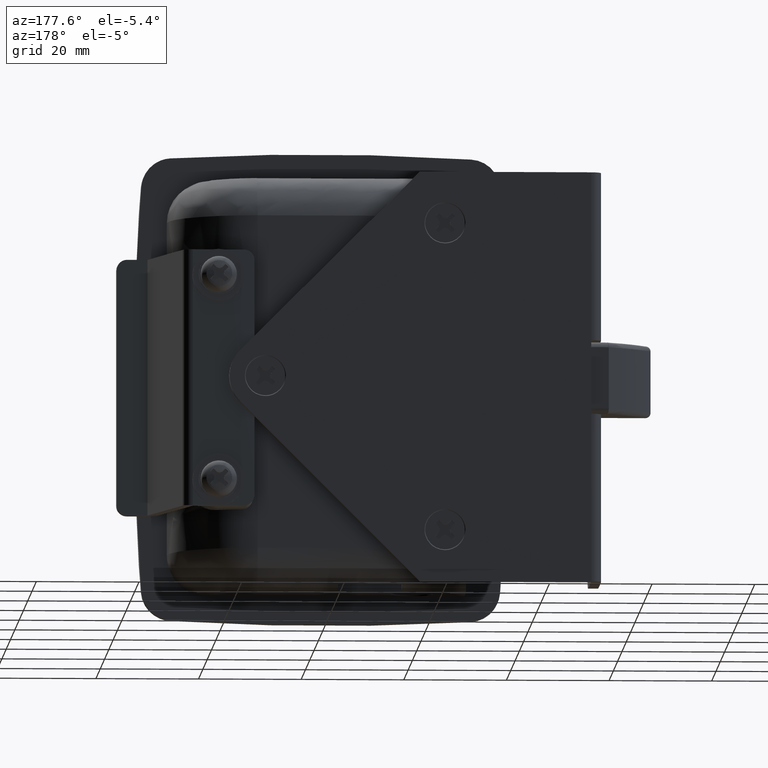
[diagram: clean part render]
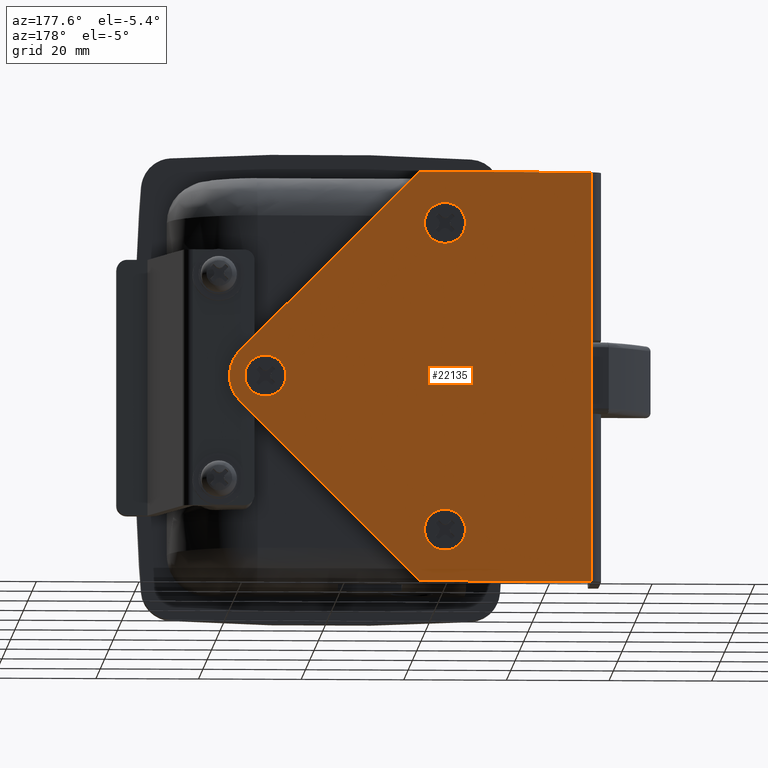
[diagram: same view with one face highlighted and labeled with its STEP entity id]
A machine part, auxiliary view. The second image highlights one B-rep face of the part: STEP entity #22135.
In plain terms, the highlighted face is a freeform B-spline surface patch.
Its self-contained STEP definition (entity closure, byte-faithful):
#17038=CARTESIAN_POINT('',(-20.133396561048780,-0.000000209282536,-32.789727531679688));
#17039=VERTEX_POINT('',#17038);
#17045=CARTESIAN_POINT('',(-23.0,0.0,-33.999999999999893));
#17046=VERTEX_POINT('',#17045);
#17047=CARTESIAN_POINT('',(-23.0,0.0,-33.999999999999893));
#17048=CARTESIAN_POINT('',(-22.633780975202932,-0.000000026736606,-34.000134656862713));
#17049=CARTESIAN_POINT('',(-21.934742328667760,-0.000000077771423,-33.903313448610263));
#17050=CARTESIAN_POINT('',(-20.945614795054869,-0.000000149984801,-33.485745652512200));
#17051=CARTESIAN_POINT('',(-20.388728202095241,-0.000000190641502,-33.052250781817527));
#17052=CARTESIAN_POINT('',(-20.133396561048780,-0.000000209282536,-32.789727531679688));
#17053=B_SPLINE_CURVE_WITH_KNOTS('',3,(#17047,#17048,#17049,#17050,#17051,#17052),.UNSPECIFIED.,.F.,.U.,(4,1,1,4),(0.000000034643123,1.098618011362662,2.097356336454394,3.195974313190774),.UNSPECIFIED.);
#17054=EDGE_CURVE('',#17046,#17039,#17053,.T.);
#17056=CARTESIAN_POINT('',(-26.999999999999542,0.0,-30.000001674878789));
#17057=VERTEX_POINT('',#17056);
#17058=CARTESIAN_POINT('',(-26.999999999999542,0.0,-30.000001674878789));
#17059=CARTESIAN_POINT('',(-27.000024728583899,0.0,-30.261797683425652));
#17060=CARTESIAN_POINT('',(-26.943611229735790,0.0,-30.834487198125341));
#17061=CARTESIAN_POINT('',(-26.700202563353290,0.0,-31.586832474314331));
#17062=CARTESIAN_POINT('',(-26.323990869831750,0.0,-32.260400895999489));
#17063=CARTESIAN_POINT('',(-25.806770434520171,0.0,-32.898784806078467));
#17064=CARTESIAN_POINT('',(-25.103840865028019,0.0,-33.447299322060907));
#17065=CARTESIAN_POINT('',(-24.128879488248199,0.0,-33.886638837275953));
#17066=CARTESIAN_POINT('',(-23.425454361718540,0.0,-34.000243861569288));
#17067=CARTESIAN_POINT('',(-23.0,0.0,-33.999999999999893));
#17068=B_SPLINE_CURVE_WITH_KNOTS('',3,(#17058,#17059,#17060,#17061,#17062,#17063,#17064,#17065,#17066,#17067),.UNSPECIFIED.,.F.,.U.,(4,1,1,1,1,1,1,4),(0.000000132146021,0.785394051413708,1.718071057366981,2.356230689143212,3.092563692529988,4.172443041750979,5.006946267069628,6.283223787515740),.UNSPECIFIED.);
#17069=EDGE_CURVE('',#17057,#17046,#17068,.T.);
#17071=CARTESIAN_POINT('',(-23.0,0.0,-26.000000000000110));
#17072=VERTEX_POINT('',#17071);
#17073=CARTESIAN_POINT('',(-23.0,0.0,-26.000000000000110));
#17074=CARTESIAN_POINT('',(-23.490952057342412,0.0,-25.999575603539679));
#17075=CARTESIAN_POINT('',(-24.161502007991970,0.0,-26.125031804835810));
#17076=CARTESIAN_POINT('',(-24.979217598787230,0.0,-26.505848861840899));
#17077=CARTESIAN_POINT('',(-25.511775213628589,0.0,-26.861652609488051));
#17078=CARTESIAN_POINT('',(-26.035117905222819,0.0,-27.359919016777820));
#17079=CARTESIAN_POINT('',(-26.507098501874111,0.0,-28.012814334727778));
#17080=CARTESIAN_POINT('',(-26.895526051689490,0.0,-28.903795342530959));
#17081=CARTESIAN_POINT('',(-27.000174910826921,0.0,-29.607286227373791));
#17082=CARTESIAN_POINT('',(-26.999999999999542,0.0,-30.000001674878789));
#17083=B_SPLINE_CURVE_WITH_KNOTS('',3,(#17073,#17074,#17075,#17076,#17077,#17078,#17079,#17080,#17081,#17082),.UNSPECIFIED.,.F.,.U.,(4,1,1,1,1,1,1,4),(0.000000131568616,1.472630033103272,2.012608711080329,2.699851140114794,3.387044032583851,4.172444296669898,5.105124155636843,6.283225675506312),.UNSPECIFIED.);
#17084=EDGE_CURVE('',#17072,#17057,#17083,.T.);
#17086=CARTESIAN_POINT('',(-20.050890191453622,0.000000208563140,-27.297638746827079));
#17087=VERTEX_POINT('',#17086);
#17088=CARTESIAN_POINT('',(-20.050890191453622,0.000000208563140,-27.297638746827079));
#17089=CARTESIAN_POINT('',(-20.307488474997449,0.000000190416327,-27.017364588471828));
#17090=CARTESIAN_POINT('',(-20.806955028029510,0.000000155093698,-26.608426929014460));
#17091=CARTESIAN_POINT('',(-21.808475122309279,0.000000084265485,-26.128341279102091));
#17092=CARTESIAN_POINT('',(-22.533613819887709,0.000000032983162,-25.999670246843898));
#17093=CARTESIAN_POINT('',(-23.0,0.0,-26.000000000000110));
#17094=B_SPLINE_CURVE_WITH_KNOTS('',3,(#17088,#17089,#17090,#17091,#17092,#17093),.UNSPECIFIED.,.F.,.U.,(4,1,1,4),(0.000000036768252,1.139934626742506,1.917141666513055,3.316149021392207),.UNSPECIFIED.);
#17095=EDGE_CURVE('',#17087,#17072,#17094,.T.);
#17179=CARTESIAN_POINT('',(-19.000000000000458,0.0,-29.999998325121240));
#17180=VERTEX_POINT('',#17179);
#17181=CARTESIAN_POINT('',(-19.000000000000458,0.0,-29.999998325121240));
#17182=CARTESIAN_POINT('',(-18.999780002255701,0.000000031012333,-29.598170422243260));
#17183=CARTESIAN_POINT('',(-19.089289602410549,0.000000076321906,-29.011092708263309));
#17184=CARTESIAN_POINT('',(-19.448582968020631,0.000000147638473,-28.087041569395218));
#17185=CARTESIAN_POINT('',(-19.779286045953832,0.000000185708696,-27.593764480891320));
#17186=CARTESIAN_POINT('',(-20.050890191453622,0.000000208563140,-27.297638746827079));
#17187=B_SPLINE_CURVE_WITH_KNOTS('',3,(#17181,#17182,#17183,#17184,#17185,#17186),.UNSPECIFIED.,.F.,.U.,(4,1,1,4),(0.000000030477780,1.205382613887133,1.761692308088288,2.967074891567413),.UNSPECIFIED.);
#17188=EDGE_CURVE('',#17180,#17087,#17187,.T.);
#17190=CARTESIAN_POINT('',(-20.133396561048780,-0.000000209282536,-32.789727531679688));
#17191=CARTESIAN_POINT('',(-19.852887368179921,-0.000000187679552,-32.501760400519309));
#17192=CARTESIAN_POINT('',(-19.417842827969270,-0.000000142026830,-31.893211068305590));
#17193=CARTESIAN_POINT('',(-19.068298982417410,-0.000000068756353,-30.916518080305089));
#17194=CARTESIAN_POINT('',(-18.999963244763840,-0.000000021712663,-30.289427348988969));
#17195=CARTESIAN_POINT('',(-19.000000000000458,0.0,-29.999998325121240));
#17196=B_SPLINE_CURVE_WITH_KNOTS('',3,(#17190,#17191,#17192,#17193,#17194,#17195),.UNSPECIFIED.,.F.,.U.,(4,1,1,4),(0.000000032947745,1.205960320813801,2.218960652298489,3.087251635470290),.UNSPECIFIED.);
#17197=EDGE_CURVE('',#17039,#17180,#17196,.T.);
#17443=CARTESIAN_POINT('',(-20.133396561048780,-0.000000209282537,27.210472468320312));
#17444=VERTEX_POINT('',#17443);
#17450=CARTESIAN_POINT('',(-23.0,0.0,26.000200000000120));
#17451=VERTEX_POINT('',#17450);
#17452=CARTESIAN_POINT('',(-23.0,0.0,26.000200000000120));
#17453=CARTESIAN_POINT('',(-22.667089374652090,-0.000000024304855,26.000136570189529));
#17454=CARTESIAN_POINT('',(-21.967963400484660,-0.000000075346047,26.087879900586579));
#17455=CARTESIAN_POINT('',(-20.972150655673062,-0.000000148047494,26.493815870226030));
#17456=CARTESIAN_POINT('',(-20.388712282279389,-0.000000190642664,26.947933558165978));
#17457=CARTESIAN_POINT('',(-20.133396561048780,-0.000000209282537,27.210472468320312));
#17458=B_SPLINE_CURVE_WITH_KNOTS('',3,(#17452,#17453,#17454,#17455,#17456,#17457),.UNSPECIFIED.,.F.,.U.,(4,1,1,4),(0.000000034646428,0.998744306119109,2.097356336455277,3.195974313190781),.UNSPECIFIED.);
#17459=EDGE_CURVE('',#17451,#17444,#17458,.T.);
#17461=CARTESIAN_POINT('',(-26.999999999999542,0.0,30.000198325121222));
#17462=VERTEX_POINT('',#17461);
#17463=CARTESIAN_POINT('',(-26.999999999999542,0.0,30.000198325121222));
#17464=CARTESIAN_POINT('',(-27.000035373658118,0.0,29.738399315582200));
#17465=CARTESIAN_POINT('',(-26.950007126625419,0.0,29.231183189216441));
#17466=CARTESIAN_POINT('',(-26.702437332211790,0.0,28.396197267343162));
#17467=CARTESIAN_POINT('',(-26.238539527097039,0.0,27.577279716624510));
#17468=CARTESIAN_POINT('',(-25.582217390943271,0.0,26.904751962434720));
#17469=CARTESIAN_POINT('',(-24.964856007866061,0.0,26.497793303264491));
#17470=CARTESIAN_POINT('',(-24.145135535212290,0.0,26.122197367290649));
#17471=CARTESIAN_POINT('',(-23.490959377393938,0.0,25.999742996236112));
#17472=CARTESIAN_POINT('',(-23.0,0.0,26.000200000000120));
#17473=B_SPLINE_CURVE_WITH_KNOTS('',3,(#17463,#17464,#17465,#17466,#17467,#17468,#17469,#17470,#17471,#17472),.UNSPECIFIED.,.F.,.U.,(4,1,1,1,1,1,1,4),(0.000000132165360,0.785394051431394,1.521717543524932,2.601676395562618,3.583375324102371,4.319713128960666,4.810595686078033,6.283223787515631),.UNSPECIFIED.);
#17474=EDGE_CURVE('',#17462,#17451,#17473,.T.);
#17476=CARTESIAN_POINT('',(-23.0,0.0,34.000199999999893));
#17477=VERTEX_POINT('',#17476);
#17478=CARTESIAN_POINT('',(-23.0,0.0,34.000199999999893));
#17479=CARTESIAN_POINT('',(-23.327251755743351,0.0,34.000287674474897));
#17480=CARTESIAN_POINT('',(-23.899898456862200,0.0,33.929511929630557));
#17481=CARTESIAN_POINT('',(-24.628626718255351,0.0,33.673783780366961));
#17482=CARTESIAN_POINT('',(-25.289827282674889,0.0,33.309889455494620));
#17483=CARTESIAN_POINT('',(-25.948734426605849,0.0,32.762465408077823));
#17484=CARTESIAN_POINT('',(-26.514030698785572,0.0,31.990336809223670));
#17485=CARTESIAN_POINT('',(-26.904600012528750,0.0,31.047332459687130));
#17486=CARTESIAN_POINT('',(-27.000143495566629,0.0,30.376542756990521));
#17487=CARTESIAN_POINT('',(-26.999999999999542,0.0,30.000198325121222));
#17488=B_SPLINE_CURVE_WITH_KNOTS('',3,(#17478,#17479,#17480,#17481,#17482,#17483,#17484,#17485,#17486,#17487),.UNSPECIFIED.,.F.,.U.,(4,1,1,1,1,1,1,4),(0.000000131571235,0.981738193292141,1.718071573033341,2.307123194279674,3.239764389510312,4.270618324295783,5.154220258974679,6.283225675506311),.UNSPECIFIED.);
#17489=EDGE_CURVE('',#17477,#17462,#17488,.T.);
#17491=CARTESIAN_POINT('',(-20.050890191453622,0.000000208563138,32.702561253172917));
#17492=VERTEX_POINT('',#17491);
#17493=CARTESIAN_POINT('',(-20.050890191453622,0.000000208563138,32.702561253172917));
#17494=CARTESIAN_POINT('',(-20.237564503028189,0.000000195361398,32.906320779078698));
#17495=CARTESIAN_POINT('',(-20.705300225588299,0.000000162282796,33.321054909686943));
#17496=CARTESIAN_POINT('',(-21.687592210163530,0.000000092814410,33.847939594457017));
#17497=CARTESIAN_POINT('',(-22.516336596385820,0.000000034205019,34.000622039936303));
#17498=CARTESIAN_POINT('',(-23.0,0.0,34.000199999999893));
#17499=B_SPLINE_CURVE_WITH_KNOTS('',3,(#17493,#17494,#17495,#17496,#17497,#17498),.UNSPECIFIED.,.F.,.U.,(4,1,1,4),(0.000000036761122,0.829037970805224,1.865317209833145,3.316149021392266),.UNSPECIFIED.);
#17500=EDGE_CURVE('',#17492,#17477,#17499,.T.);
#17583=CARTESIAN_POINT('',(-19.000000000000469,0.0,30.000201674878749));
#17584=VERTEX_POINT('',#17583);
#17585=CARTESIAN_POINT('',(-19.000000000000469,0.0,30.000201674878749));
#17586=CARTESIAN_POINT('',(-18.999929786310741,0.000000023853951,30.309278172536072));
#17587=CARTESIAN_POINT('',(-19.068417902298670,0.000000069172407,30.896470990602630));
#17588=CARTESIAN_POINT('',(-19.396328389330549,0.000000141627056,31.835268323985879));
#17589=CARTESIAN_POINT('',(-19.779288817607888,0.000000185709247,32.406442687153998));
#17590=CARTESIAN_POINT('',(-20.050890191453622,0.000000208563138,32.702561253172917));
#17591=B_SPLINE_CURVE_WITH_KNOTS('',3,(#17585,#17586,#17587,#17588,#17589,#17590),.UNSPECIFIED.,.F.,.U.,(4,1,1,4),(0.000000030478426,0.927215975681670,1.761692308088694,2.967074891567404),.UNSPECIFIED.);
#17592=EDGE_CURVE('',#17584,#17492,#17591,.T.);
#17594=CARTESIAN_POINT('',(-20.133396561048780,-0.000000209282537,27.210472468320312));
#17595=CARTESIAN_POINT('',(-19.953947180174492,-0.000000195452557,27.394825684802012));
#17596=CARTESIAN_POINT('',(-19.620709125790789,-0.000000164237540,27.810920875109701));
#17597=CARTESIAN_POINT('',(-19.301996561879331,-0.000000117901258,28.428581989099211));
#17598=CARTESIAN_POINT('',(-19.063519301483471,-0.000000062722322,29.164115336623709));
#17599=CARTESIAN_POINT('',(-18.999903631553579,-0.000000025332491,29.662520469460478));
#17600=CARTESIAN_POINT('',(-19.000000000000469,0.0,30.000201674878749));
#17601=B_SPLINE_CURVE_WITH_KNOTS('',3,(#17594,#17595,#17596,#17597,#17598,#17599,#17600),.UNSPECIFIED.,.F.,.U.,(4,1,1,1,4),(0.000000032947541,0.771812903240421,1.591843750767028,2.074243116915188,3.087251635470289),.UNSPECIFIED.);
#17602=EDGE_CURVE('',#17444,#17584,#17601,.T.);
#17849=CARTESIAN_POINT('',(14.866603438951220,-0.000000209282537,-2.789727531679689));
#17850=VERTEX_POINT('',#17849);
#17856=CARTESIAN_POINT('',(12.0,0.0,-3.999999999999890));
#17857=VERTEX_POINT('',#17856);
#17858=CARTESIAN_POINT('',(12.0,0.0,-3.999999999999890));
#17859=CARTESIAN_POINT('',(12.416174527571590,-0.000000030383715,-4.000225881305692));
#17860=CARTESIAN_POINT('',(13.098481333707250,-0.000000080196988,-3.892475019790310));
#17861=CARTESIAN_POINT('',(14.079563818455361,-0.000000151823020,-3.463755419902011));
#17862=CARTESIAN_POINT('',(14.599685771084310,-0.000000189795640,-3.064213985921363));
#17863=CARTESIAN_POINT('',(14.866603438951220,-0.000000209282537,-2.789727531679689));
#17864=B_SPLINE_CURVE_WITH_KNOTS('',3,(#17858,#17859,#17860,#17861,#17862,#17863),.UNSPECIFIED.,.F.,.U.,(4,1,1,4),(0.000000034645903,1.248434203076903,2.047412353012588,3.195974313190774),.UNSPECIFIED.);
#17865=EDGE_CURVE('',#17857,#17850,#17864,.T.);
#17867=CARTESIAN_POINT('',(8.000000000000464,0.0,-0.000001674878781));
#17868=VERTEX_POINT('',#17867);
#17869=CARTESIAN_POINT('',(8.000000000000464,0.0,-0.000001674878781));
#17870=CARTESIAN_POINT('',(7.999584859518224,0.0,-0.490925224358474));
#17871=CARTESIAN_POINT('',(8.158651083748962,0.0,-1.341488472014273));
#17872=CARTESIAN_POINT('',(8.684223330694605,0.0,-2.296165229083357));
#17873=CARTESIAN_POINT('',(9.206483920666182,0.0,-2.886655474678789));
#17874=CARTESIAN_POINT('',(9.713780198861253,0.0,-3.302991226042930));
#17875=CARTESIAN_POINT('',(10.323894549615931,0.0,-3.658626748965719));
#17876=CARTESIAN_POINT('',(11.100090122991160,0.0,-3.930978895498558));
#17877=CARTESIAN_POINT('',(11.689108541809530,0.0,-4.000067211278950));
#17878=CARTESIAN_POINT('',(12.0,0.0,-3.999999999999890));
#17879=B_SPLINE_CURVE_WITH_KNOTS('',3,(#17869,#17870,#17871,#17872,#17873,#17874,#17875,#17876,#17877,#17878),.UNSPECIFIED.,.F.,.U.,(4,1,1,1,1,1,1,4),(0.000000132159848,1.472629591085390,2.552568305523895,3.239763413772240,3.828824417803785,4.516063509617237,5.350562324962835,6.283223787515684),.UNSPECIFIED.);
#17880=EDGE_CURVE('',#17868,#17857,#17879,.T.);
#17882=CARTESIAN_POINT('',(12.0,0.0,3.999999999999890));
#17883=VERTEX_POINT('',#17882);
#17884=CARTESIAN_POINT('',(12.0,0.0,3.999999999999890));
#17885=CARTESIAN_POINT('',(11.623651491323120,0.0,4.000126579014064));
#17886=CARTESIAN_POINT('',(11.001956042083551,0.0,3.911596535205616));
#17887=CARTESIAN_POINT('',(10.237250890631250,0.0,3.611139077806684));
#17888=CARTESIAN_POINT('',(9.632134476552603,0.0,3.248443898316984));
#17889=CARTESIAN_POINT('',(9.022051521213360,0.0,2.722289264402703));
#17890=CARTESIAN_POINT('',(8.437146632582985,0.0,1.923620164526393));
#17891=CARTESIAN_POINT('',(8.074329952563952,0.0,0.965388726341853));
#17892=CARTESIAN_POINT('',(7.999969185756487,0.0,0.294514062788636));
#17893=CARTESIAN_POINT('',(8.000000000000464,0.0,-0.000001674878781));
#17894=B_SPLINE_CURVE_WITH_KNOTS('',3,(#17884,#17885,#17886,#17887,#17888,#17889,#17890,#17891,#17892,#17893),.UNSPECIFIED.,.F.,.U.,(4,1,1,1,1,1,1,4),(0.000000131579335,1.129010650844709,1.865338077929333,2.454403737095658,3.239764389511992,4.270618324296796,5.399666949536954,6.283225675506252),.UNSPECIFIED.);
#17895=EDGE_CURVE('',#17883,#17868,#17894,.T.);
#17897=CARTESIAN_POINT('',(14.949109808546380,0.000000208563138,2.702361253172921));
#17898=VERTEX_POINT('',#17897);
#17899=CARTESIAN_POINT('',(14.949109808546380,0.000000208563138,2.702361253172921));
#17900=CARTESIAN_POINT('',(14.634269083863710,0.000000186297378,3.046413058232078));
#17901=CARTESIAN_POINT('',(13.979898228252150,0.000000140019807,3.547546350158291));
#17902=CARTESIAN_POINT('',(12.932650060224081,0.000000065957674,3.929357244199613));
#17903=CARTESIAN_POINT('',(12.293614821107880,0.000000020764648,4.000039830369911));
#17904=CARTESIAN_POINT('',(12.0,0.0,3.999999999999890));
#17905=B_SPLINE_CURVE_WITH_KNOTS('',3,(#17899,#17900,#17901,#17902,#17903,#17904),.UNSPECIFIED.,.F.,.U.,(4,1,1,4),(0.000000036766828,1.399010705399002,2.435295831153156,3.316149021392231),.UNSPECIFIED.);
#17906=EDGE_CURVE('',#17898,#17883,#17905,.T.);
#17989=CARTESIAN_POINT('',(15.999999999999540,0.0,0.000001674878758));
#17990=VERTEX_POINT('',#17989);
#17991=CARTESIAN_POINT('',(15.999999999999540,0.0,0.000001674878758));
#17992=CARTESIAN_POINT('',(16.000103889155561,0.000000026239621,0.339989376231566));
#17993=CARTESIAN_POINT('',(15.924646942606531,0.000000071556336,0.927159637088349));
#17994=CARTESIAN_POINT('',(15.586248609881441,0.000000143631028,1.861033861535925));
#17995=CARTESIAN_POINT('',(15.220702295152050,0.000000185708405,2.406231783585567));
#17996=CARTESIAN_POINT('',(14.949109808546380,0.000000208563138,2.702361253172921));
#17997=B_SPLINE_CURVE_WITH_KNOTS('',3,(#17991,#17992,#17993,#17994,#17995,#17996),.UNSPECIFIED.,.F.,.U.,(4,1,1,4),(0.000000030477955,1.019939002010793,1.761692308088498,2.967074891567395),.UNSPECIFIED.);
#17998=EDGE_CURVE('',#17990,#17898,#17997,.T.);
#18000=CARTESIAN_POINT('',(14.866603438951220,-0.000000209282537,-2.789727531679689));
#18001=CARTESIAN_POINT('',(15.214641126955680,-0.000000182504397,-2.432775731869671));
#18002=CARTESIAN_POINT('',(15.665599033042120,-0.000000131306310,-1.750306874315685));
#18003=CARTESIAN_POINT('',(15.955125868950381,-0.000000056693326,-0.755718347751849));
#18004=CARTESIAN_POINT('',(16.000006993309540,-0.000000016887404,-0.225106820178740));
#18005=CARTESIAN_POINT('',(15.999999999999540,0.0,0.000001674878758));
#18006=B_SPLINE_CURVE_WITH_KNOTS('',3,(#18000,#18001,#18002,#18003,#18004,#18005),.UNSPECIFIED.,.F.,.U.,(4,1,1,4),(0.000000032949107,1.495407917603691,2.411916817361766,3.087251635470281),.UNSPECIFIED.);
#18007=EDGE_CURVE('',#17850,#17990,#18006,.T.);
#19347=CARTESIAN_POINT('',(-51.500000000000000,0.0,7.200199999999900));
#19348=VERTEX_POINT('',#19347);
#19354=CARTESIAN_POINT('',(-51.500000000000000,0.0,-7.200000000000000));
#19355=VERTEX_POINT('',#19354);
#19356=CARTESIAN_POINT('',(-51.500000000000000,0.0,7.200199999999900));
#19357=CARTESIAN_POINT('',(-51.500000000000000,0.0,-7.200000000000000));
#19358=QUASI_UNIFORM_CURVE('',1,(#19356,#19357),.UNSPECIFIED.,.F.,.U.);
#19359=EDGE_CURVE('',#19348,#19355,#19358,.T.);
#19494=CARTESIAN_POINT('',(-51.500000000000000,0.0,-40.0));
#19495=VERTEX_POINT('',#19494);
#19496=CARTESIAN_POINT('',(-51.500000000000000,0.0,-40.0));
#19497=CARTESIAN_POINT('',(-51.500000000000000,0.0,-7.200000000000000));
#19498=QUASI_UNIFORM_CURVE('',1,(#19496,#19497),.UNSPECIFIED.,.F.,.U.);
#19499=EDGE_CURVE('',#19495,#19355,#19498,.T.);
#21875=CARTESIAN_POINT('',(-18.100000000000001,0.0,-40.0));
#21876=VERTEX_POINT('',#21875);
#21877=CARTESIAN_POINT('',(-18.100000000000001,0.0,-40.0));
#21878=CARTESIAN_POINT('',(-51.500000000000000,0.0,-40.0));
#21879=QUASI_UNIFORM_CURVE('',1,(#21877,#21878),.UNSPECIFIED.,.F.,.U.);
#21880=EDGE_CURVE('',#21876,#19495,#21879,.T.);
#21902=CARTESIAN_POINT('',(-51.500000000000000,0.0,40.000200000000000));
#21903=VERTEX_POINT('',#21902);
#21904=CARTESIAN_POINT('',(-18.100000000000001,0.0,40.000200000000000));
#21905=VERTEX_POINT('',#21904);
#21906=CARTESIAN_POINT('',(-51.500000000000000,0.0,40.000200000000000));
#21907=CARTESIAN_POINT('',(-18.100000000000001,0.0,40.000200000000000));
#21908=QUASI_UNIFORM_CURVE('',1,(#21906,#21907),.UNSPECIFIED.,.F.,.U.);
#21909=EDGE_CURVE('',#21903,#21905,#21908,.T.);
#21987=CARTESIAN_POINT('',(16.949985963325251,0.0,-4.949714036794970));
#21988=VERTEX_POINT('',#21987);
#21996=CARTESIAN_POINT('',(16.949985963325251,0.0,-4.949714036794970));
#21997=CARTESIAN_POINT('',(-18.100000000000001,0.0,-40.0));
#21998=QUASI_UNIFORM_CURVE('',1,(#21996,#21997),.UNSPECIFIED.,.F.,.U.);
#21999=EDGE_CURVE('',#21988,#21876,#21998,.T.);
#22020=CARTESIAN_POINT('',(16.949999999999999,0.0,4.949800000000000));
#22021=VERTEX_POINT('',#22020);
#22022=CARTESIAN_POINT('',(16.949985963325251,0.0,-4.949714036794970));
#22023=CARTESIAN_POINT('',(17.314523824299030,0.0,-4.585332530889240));
#22024=CARTESIAN_POINT('',(17.818426351050320,0.0,-3.955441179723611));
#22025=CARTESIAN_POINT('',(18.385580262832740,0.0,-2.924983469686994));
#22026=CARTESIAN_POINT('',(18.802789137577740,0.0,-1.823589386691812));
#22027=CARTESIAN_POINT('',(19.034301769211741,0.0,-0.489494441008981));
#22028=CARTESIAN_POINT('',(18.984467195568961,0.0,0.861905608561247));
#22029=CARTESIAN_POINT('',(18.733434641197370,0.0,2.012595111050343));
#22030=CARTESIAN_POINT('',(18.320123728793121,0.0,3.084150988286848));
#22031=CARTESIAN_POINT('',(17.734832026174551,0.0,4.074337915067562));
#22032=CARTESIAN_POINT('',(17.213227966950271,0.0,4.686594810979856));
#22033=CARTESIAN_POINT('',(16.949999999999999,0.0,4.949800000000000));
#22034=B_SPLINE_CURVE_WITH_KNOTS('',3,(#22022,#22023,#22024,#22025,#22026,#22027,#22028,#22029,#22030,#22031,#22032,#22033),.UNSPECIFIED.,.F.,.U.,(4,1,1,1,1,1,1,1,1,4),(0.000000106027558,1.546247696267416,2.405305667774647,3.522054191558498,5.068324403741798,6.442750973540969,7.559517255950171,8.590379023990757,9.878936741772325,10.995677809973801),.UNSPECIFIED.);
#22035=EDGE_CURVE('',#21988,#22021,#22034,.T.);
#22053=CARTESIAN_POINT('',(-18.100000000000001,0.0,40.000200000000000));
#22054=CARTESIAN_POINT('',(16.949999999999999,0.0,4.949800000000000));
#22055=QUASI_UNIFORM_CURVE('',1,(#22053,#22054),.UNSPECIFIED.,.F.,.U.);
#22056=EDGE_CURVE('',#21905,#22021,#22055,.T.);
#22092=CARTESIAN_POINT('',(-55.021488202647397,0.0,43.996208332974817));
#22093=CARTESIAN_POINT('',(22.521757146476951,0.0,43.996208332974817));
#22094=CARTESIAN_POINT('',(-55.021488202647397,0.0,-43.996011909262442));
#22095=CARTESIAN_POINT('',(22.521757146476951,0.0,-43.996011909262442));
#22096=B_SPLINE_SURFACE_WITH_KNOTS('',1,1,((#22092,#22094),(#22093,#22095)),.UNSPECIFIED.,.F.,.F.,.U.,(2,2),(2,2),(0.0,77.543245349124362),(0.0,87.992220242237266),.UNSPECIFIED.);
#22097=ORIENTED_EDGE('',*,*,#21880,.T.);
#22098=ORIENTED_EDGE('',*,*,#19499,.T.);
#22099=ORIENTED_EDGE('',*,*,#19359,.F.);
#22100=CARTESIAN_POINT('',(-51.500000000000000,0.0,7.200199999999900));
#22101=CARTESIAN_POINT('',(-51.500000000000000,0.0,40.000200000000000));
#22102=QUASI_UNIFORM_CURVE('',1,(#22100,#22101),.UNSPECIFIED.,.F.,.U.);
#22103=EDGE_CURVE('',#19348,#21903,#22102,.T.);
#22104=ORIENTED_EDGE('',*,*,#22103,.T.);
#22105=ORIENTED_EDGE('',*,*,#21909,.T.);
#22106=ORIENTED_EDGE('',*,*,#22056,.T.);
#22107=ORIENTED_EDGE('',*,*,#22035,.F.);
#22108=ORIENTED_EDGE('',*,*,#21999,.T.);
#22109=EDGE_LOOP('',(#22097,#22098,#22099,#22104,#22105,#22106,#22107,#22108));
#22110=FACE_OUTER_BOUND('',#22109,.T.);
#22111=ORIENTED_EDGE('',*,*,#17489,.T.);
#22112=ORIENTED_EDGE('',*,*,#17474,.T.);
#22113=ORIENTED_EDGE('',*,*,#17459,.T.);
#22114=ORIENTED_EDGE('',*,*,#17602,.T.);
#22115=ORIENTED_EDGE('',*,*,#17592,.T.);
#22116=ORIENTED_EDGE('',*,*,#17500,.T.);
#22117=EDGE_LOOP('',(#22111,#22112,#22113,#22114,#22115,#22116));
#22118=FACE_BOUND('',#22117,.T.);
#22119=ORIENTED_EDGE('',*,*,#17895,.T.);
#22120=ORIENTED_EDGE('',*,*,#17880,.T.);
#22121=ORIENTED_EDGE('',*,*,#17865,.T.);
#22122=ORIENTED_EDGE('',*,*,#18007,.T.);
#22123=ORIENTED_EDGE('',*,*,#17998,.T.);
#22124=ORIENTED_EDGE('',*,*,#17906,.T.);
#22125=EDGE_LOOP('',(#22119,#22120,#22121,#22122,#22123,#22124));
#22126=FACE_BOUND('',#22125,.T.);
#22127=ORIENTED_EDGE('',*,*,#17084,.T.);
#22128=ORIENTED_EDGE('',*,*,#17069,.T.);
#22129=ORIENTED_EDGE('',*,*,#17054,.T.);
#22130=ORIENTED_EDGE('',*,*,#17197,.T.);
#22131=ORIENTED_EDGE('',*,*,#17188,.T.);
#22132=ORIENTED_EDGE('',*,*,#17095,.T.);
#22133=EDGE_LOOP('',(#22127,#22128,#22129,#22130,#22131,#22132));
#22134=FACE_BOUND('',#22133,.T.);
#22135=ADVANCED_FACE('',(#22110,#22118,#22126,#22134),#22096,.T.);